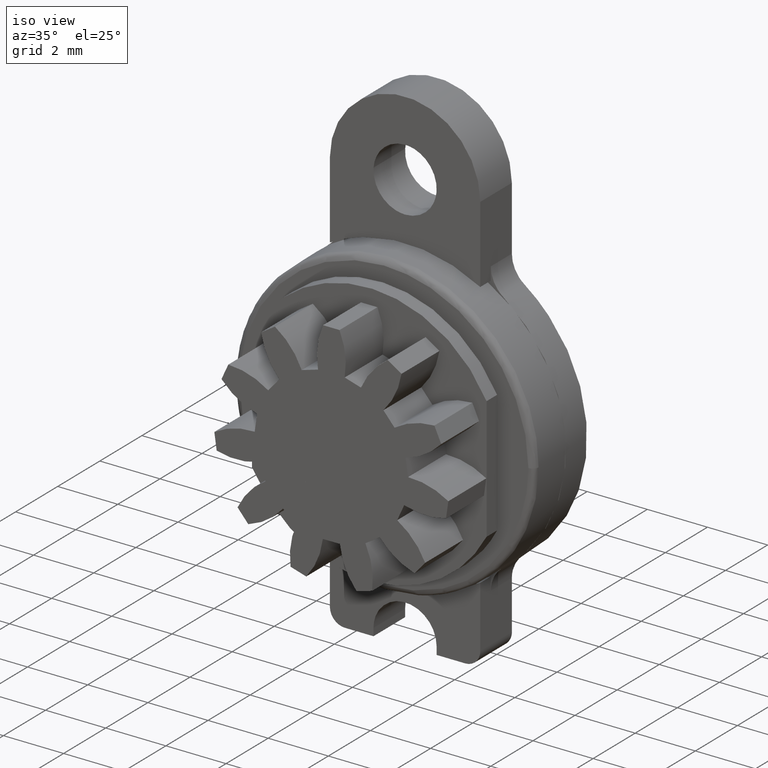
[diagram: clean part render]
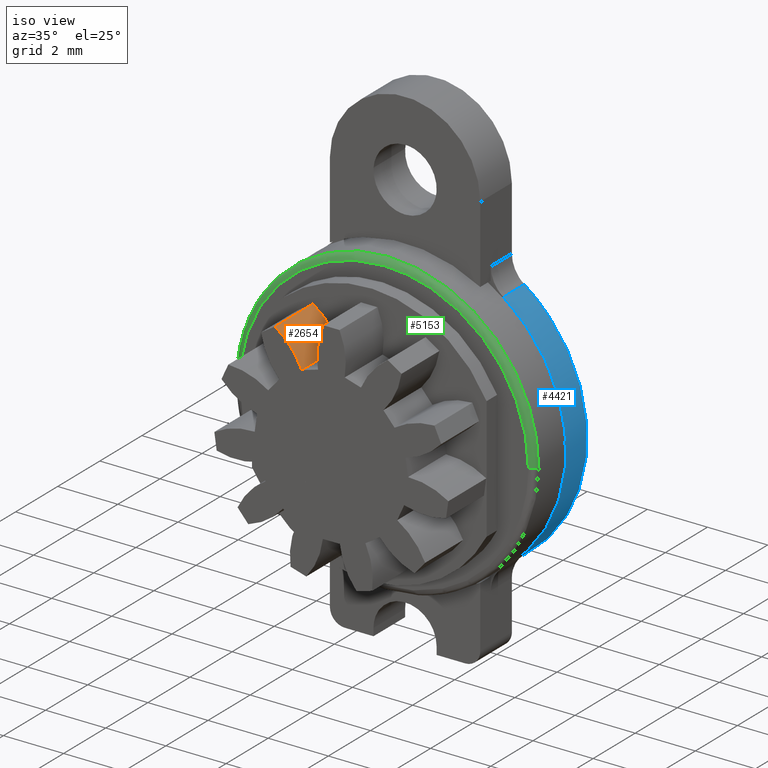
[diagram: same view with three faces highlighted in distinct colors, each labeled with its STEP entity id]
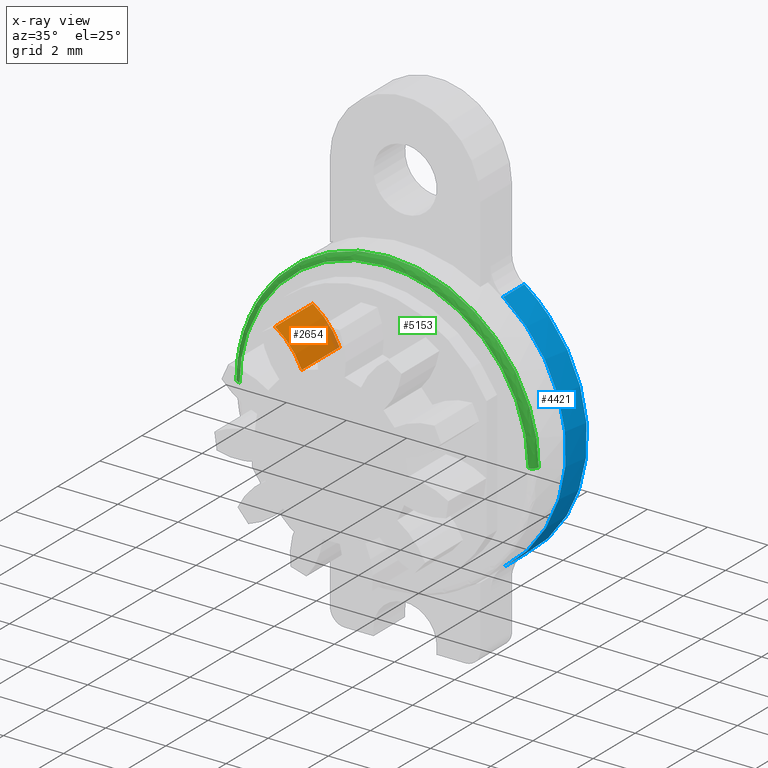
[diagram: x-ray of the same camera — body ghosted, the three highlighted faces saturated]
A machine part, iso view with three faces highlighted in distinct colors.
The next image is the same camera in x-ray (body ghosted, the three faces saturated) — at least one of them is partly hidden behind the body in this view.
Their STEP definitions:

[orange] entity #2654 — the highlighted face is a freeform B-spline surface patch.
#413=CARTESIAN_POINT('',(-0.985180069397917,-5.0,2.352003450435630));
#414=VERTEX_POINT('',#413);
#428=CARTESIAN_POINT('',(-1.874499756496710,-5.0,3.419978167020045));
#429=VERTEX_POINT('',#428);
#430=CARTESIAN_POINT('',(-0.985180069397921,-5.0,2.352003450435628));
#431=CARTESIAN_POINT('',(-1.265998256017910,-5.000000000000002,3.022424386050909));
#432=CARTESIAN_POINT('',(-1.874499756496711,-5.0,3.419978167020042));
#440=(BOUNDED_CURVE()B_SPLINE_CURVE(2,(#430,#431,#432),.UNSPECIFIED.,.F.,.U.)CURVE()GEOMETRIC_REPRESENTATION_ITEM()QUASI_UNIFORM_CURVE()RATIONAL_B_SPLINE_CURVE((1.0,0.956011273868735,1.0))REPRESENTATION_ITEM(''));
#441=EDGE_CURVE('',#414,#429,#440,.T.);
#2591=CARTESIAN_POINT('',(-1.874499756496710,-3.200000000000090,3.419978167020045));
#2592=VERTEX_POINT('',#2591);
#2608=CARTESIAN_POINT('',(-1.874499756496710,-5.0,3.419978167020045));
#2609=CARTESIAN_POINT('',(-1.874499756496710,-3.200000000000090,3.419978167020045));
#2610=QUASI_UNIFORM_CURVE('',1,(#2608,#2609),.UNSPECIFIED.,.F.,.U.);
#2611=EDGE_CURVE('',#429,#2592,#2610,.T.);
#2616=CARTESIAN_POINT('',(-0.977276451018096,-5.044999999999998,2.332900999438690));
#2617=CARTESIAN_POINT('',(-0.977276451018096,-3.153875000000092,2.332900999438690));
#2618=CARTESIAN_POINT('',(-1.271014033214468,-5.044999999999999,3.051704742115863));
#2619=CARTESIAN_POINT('',(-1.271014033214468,-3.153875000000092,3.051704742115863));
#2620=CARTESIAN_POINT('',(-1.933263066045181,-5.044999999999998,3.457151170384828));
#2621=CARTESIAN_POINT('',(-1.933263066045181,-3.153875000000093,3.457151170384828));
#2629=(BOUNDED_SURFACE()B_SPLINE_SURFACE(1,2,((#2616,#2618,#2620),(#2617,#2619,#2621)),.UNSPECIFIED.,.F.,.F.,.U.)B_SPLINE_SURFACE_WITH_KNOTS((2,2),(3,3),(0.0,1.0),(0.0,0.954452824884700),.UNSPECIFIED.)GEOMETRIC_REPRESENTATION_ITEM()RATIONAL_B_SPLINE_SURFACE(((1.0,0.948000050577026,0.995263098395290),(1.0,0.948000050577026,0.995263098395290)))REPRESENTATION_ITEM('')SURFACE());
#2630=CARTESIAN_POINT('',(-0.985180069397917,-3.200000000000090,2.352003450435630));
#2631=VERTEX_POINT('',#2630);
#2632=CARTESIAN_POINT('',(-0.985180069397921,-3.200000000000090,2.352003450435628));
#2633=CARTESIAN_POINT('',(-1.265998256017910,-3.200000000000091,3.022424386050909));
#2634=CARTESIAN_POINT('',(-1.874499756496711,-3.200000000000090,3.419978167020042));
#2642=(BOUNDED_CURVE()B_SPLINE_CURVE(2,(#2632,#2633,#2634),.UNSPECIFIED.,.F.,.U.)CURVE()GEOMETRIC_REPRESENTATION_ITEM()QUASI_UNIFORM_CURVE()RATIONAL_B_SPLINE_CURVE((1.0,0.956011273868735,1.0))REPRESENTATION_ITEM(''));
#2643=EDGE_CURVE('',#2631,#2592,#2642,.T.);
#2644=ORIENTED_EDGE('',*,*,#2643,.T.);
#2645=ORIENTED_EDGE('',*,*,#2611,.F.);
#2646=ORIENTED_EDGE('',*,*,#441,.F.);
#2647=CARTESIAN_POINT('',(-0.985180069397917,-5.0,2.352003450435630));
#2648=CARTESIAN_POINT('',(-0.985180069397917,-3.200000000000090,2.352003450435630));
#2649=QUASI_UNIFORM_CURVE('',1,(#2647,#2648),.UNSPECIFIED.,.F.,.U.);
#2650=EDGE_CURVE('',#414,#2631,#2649,.T.);
#2651=ORIENTED_EDGE('',*,*,#2650,.T.);
#2652=EDGE_LOOP('',(#2644,#2645,#2646,#2651));
#2653=FACE_OUTER_BOUND('',#2652,.T.);
#2654=ADVANCED_FACE('',(#2653),#2629,.T.);

[blue] entity #4421 — the highlighted face is a freeform B-spline surface patch.
#3961=CARTESIAN_POINT('',(2.916666666666655,0.0,4.061164310337071));
#3962=VERTEX_POINT('',#3961);
#3976=CARTESIAN_POINT('',(2.916666666666670,0.0,-4.061164310337071));
#3977=VERTEX_POINT('',#3976);
#3978=CARTESIAN_POINT('',(2.916666666666670,0.0,-4.061164310337071));
#3979=CARTESIAN_POINT('',(3.207456458630582,0.0,-3.852408353177686));
#3980=CARTESIAN_POINT('',(3.651333381854649,0.0,-3.454838441777005));
#3981=CARTESIAN_POINT('',(4.191970100041232,0.0,-2.762327982895506));
#3982=CARTESIAN_POINT('',(4.541039002110905,0.0,-2.134304670463381));
#3983=CARTESIAN_POINT('',(4.813180520902719,0.0,-1.417593927508520));
#3984=CARTESIAN_POINT('',(4.974293155356738,0.0,-0.691978332974171));
#3985=CARTESIAN_POINT('',(5.016893766348680,0.0,0.074442021849690));
#3986=CARTESIAN_POINT('',(4.953210019447623,0.0,0.789115415605036));
#3987=CARTESIAN_POINT('',(4.817409734811525,0.0,1.380035923574430));
#3988=CARTESIAN_POINT('',(4.631626982281780,0.0,1.904080887902194));
#3989=CARTESIAN_POINT('',(4.391034669015823,0.0,2.419227393563223));
#3990=CARTESIAN_POINT('',(4.034394751411957,0.0,2.984498044398972));
#3991=CARTESIAN_POINT('',(3.533604740069014,0.0,3.565959938711422));
#3992=CARTESIAN_POINT('',(3.137243521099101,0.0,3.902775265572735));
#3993=CARTESIAN_POINT('',(2.916666666666655,0.0,4.061164310337071));
#3994=B_SPLINE_CURVE_WITH_KNOTS('',3,(#3978,#3979,#3980,#3981,#3982,#3983,#3984,#3985,#3986,#3987,#3988,#3989,#3990,#3991,#3992,#3993),.UNSPECIFIED.,.F.,.U.,(4,1,1,1,1,1,1,1,1,1,1,1,1,4),(4.250369E-009,1.073871404255108,1.777445706548366,2.629141572410706,3.221626028827665,4.073321137400575,4.850944669464115,5.517486279744299,6.221062057539772,6.665425930231219,7.183849843118161,7.924453044452033,8.665061496751829,9.479719078071888),.UNSPECIFIED.);
#3995=EDGE_CURVE('',#3977,#3962,#3994,.T.);
#4186=CARTESIAN_POINT('',(2.916666666666670,-1.0,-4.061164310337065));
#4187=VERTEX_POINT('',#4186);
#4188=CARTESIAN_POINT('',(2.916666666666670,-1.0,-4.061164310337065));
#4189=CARTESIAN_POINT('',(2.916666666666670,0.0,-4.061164310337071));
#4190=QUASI_UNIFORM_CURVE('',1,(#4188,#4189),.UNSPECIFIED.,.F.,.U.);
#4191=EDGE_CURVE('',#4187,#3977,#4190,.T.);
#4359=CARTESIAN_POINT('',(2.916666666666655,-1.0,4.061164310337071));
#4360=VERTEX_POINT('',#4359);
#4374=CARTESIAN_POINT('',(2.916666666666655,-1.0,4.061164310337071));
#4375=CARTESIAN_POINT('',(2.916666666666655,0.0,4.061164310337071));
#4376=QUASI_UNIFORM_CURVE('',1,(#4374,#4375),.UNSPECIFIED.,.F.,.U.);
#4377=EDGE_CURVE('',#4360,#3962,#4376,.T.);
#4382=CARTESIAN_POINT('',(2.782541470120746,0.025000000000000,4.154210269962055));
#4383=CARTESIAN_POINT('',(2.782541470120746,-1.025625000000000,4.154210269962055));
#4384=CARTESIAN_POINT('',(9.303345415193549,0.025000000000000,-0.213504943417795));
#4385=CARTESIAN_POINT('',(9.303345415193549,-1.025625000000000,-0.213504943417795));
#4386=CARTESIAN_POINT('',(2.589040277330379,0.025000000000000,-4.277484125319575));
#4387=CARTESIAN_POINT('',(2.589040277330379,-1.025625000000000,-4.277484125319575));
#4395=(BOUNDED_SURFACE()B_SPLINE_SURFACE(1,2,((#4382,#4384,#4386),(#4383,#4385,#4387)),.UNSPECIFIED.,.F.,.F.,.U.)B_SPLINE_SURFACE_WITH_KNOTS((2,2),(3,3),(0.0,1.0),(0.0,10.972375732533351),.UNSPECIFIED.)GEOMETRIC_REPRESENTATION_ITEM()RATIONAL_B_SPLINE_SURFACE(((1.0,0.537299608346823,1.0),(1.0,0.537299608346823,1.0)))REPRESENTATION_ITEM('')SURFACE());
#4396=ORIENTED_EDGE('',*,*,#4377,.F.);
#4397=CARTESIAN_POINT('',(2.916666666666670,-1.0,-4.061164310337065));
#4398=CARTESIAN_POINT('',(3.167328580616664,-1.000000000000001,-3.881184411196988));
#4399=CARTESIAN_POINT('',(3.616436045070392,-0.999999999999997,-3.490858522766815));
#4400=CARTESIAN_POINT('',(4.121287602798405,-1.000000000000006,-2.863546564196753));
#4401=CARTESIAN_POINT('',(4.496124653630602,-0.999999999999997,-2.223097175600209));
#4402=CARTESIAN_POINT('',(4.742316107844779,-1.0,-1.628427952509644));
#4403=CARTESIAN_POINT('',(4.902956207168020,-1.0,-1.031543408755373));
#4404=CARTESIAN_POINT('',(4.981480952327410,-1.000000000000000,-0.518295335230647));
#4405=CARTESIAN_POINT('',(5.009010610099914,-1.0,0.012278972899370));
#4406=CARTESIAN_POINT('',(4.977630648895016,-1.0,0.617351599626761));
#4407=CARTESIAN_POINT('',(4.847473541340954,-1.0,1.298345273974296));
#4408=CARTESIAN_POINT('',(4.626536437020072,-1.0,1.928955498379841));
#4409=CARTESIAN_POINT('',(4.352630297091658,-0.999999999999998,2.482938949051043));
#4410=CARTESIAN_POINT('',(4.010159812948349,-1.000000000000013,3.012631987809102));
#4411=CARTESIAN_POINT('',(3.533606107546157,-0.999999999999978,3.565960647811775));
#4412=CARTESIAN_POINT('',(3.137243254226354,-1.000000000000004,3.902775095816954));
#4413=CARTESIAN_POINT('',(2.916666666666655,-1.0,4.061164310337071));
#4414=B_SPLINE_CURVE_WITH_KNOTS('',3,(#4397,#4398,#4399,#4400,#4401,#4402,#4403,#4404,#4405,#4406,#4407,#4408,#4409,#4410,#4411,#4412,#4413),.UNSPECIFIED.,.F.,.U.,(4,1,1,1,1,1,1,1,1,1,1,1,1,1,4),(4.246088E-009,0.925747841402710,1.777445706545133,2.406960239514987,3.147566404136663,3.703015773304080,4.258472441084297,4.702831335883138,5.295310283933149,6.072944879478225,6.776518025200307,7.294940940224413,7.924453044451291,8.665061496751424,9.479719078071916),.UNSPECIFIED.);
#4415=EDGE_CURVE('',#4187,#4360,#4414,.T.);
#4416=ORIENTED_EDGE('',*,*,#4415,.F.);
#4417=ORIENTED_EDGE('',*,*,#4191,.T.);
#4418=ORIENTED_EDGE('',*,*,#3995,.T.);
#4419=EDGE_LOOP('',(#4396,#4416,#4417,#4418));
#4420=FACE_OUTER_BOUND('',#4419,.T.);
#4421=ADVANCED_FACE('',(#4420),#4395,.T.);

[green] entity #5153 — the highlighted face is a freeform B-spline surface patch.
#4931=CARTESIAN_POINT('',(-5.000000000000005,-2.300000000162677,-4.425539E-016));
#4932=VERTEX_POINT('',#4931);
#4933=CARTESIAN_POINT('',(-3.686386764767198,-2.300000000086348,3.377950949991615));
#4934=VERTEX_POINT('',#4933);
#4935=CARTESIAN_POINT('',(-5.000000000000005,-2.300000000162677,-4.425539E-016));
#4936=CARTESIAN_POINT('',(-5.000000000000006,-2.300000000131040,1.944393590493176));
#4937=CARTESIAN_POINT('',(-3.686386764767200,-2.300000000086342,3.377950949991617));
#4945=(BOUNDED_CURVE()B_SPLINE_CURVE(2,(#4935,#4936,#4937),.UNSPECIFIED.,.F.,.U.)B_SPLINE_CURVE_WITH_KNOTS((3,3),(0.750000000000000,0.868415205476859),.UNSPECIFIED.)CURVE()GEOMETRIC_REPRESENTATION_ITEM()RATIONAL_B_SPLINE_CURVE((1.0,0.861267957245706,0.853959781283204))REPRESENTATION_ITEM(''));
#4946=EDGE_CURVE('',#4932,#4934,#4945,.T.);
#5011=CARTESIAN_POINT('',(-7.105427E-015,-2.299999999999970,4.999999999999999));
#5012=VERTEX_POINT('',#5011);
#5013=CARTESIAN_POINT('',(-3.686386764767200,-2.300000000086342,3.377950949991617));
#5014=CARTESIAN_POINT('',(-2.200052725762792,-2.300000000035767,4.999999999999999));
#5015=CARTESIAN_POINT('',(-7.105427E-015,-2.299999999999970,4.999999999999999));
#5023=(BOUNDED_CURVE()B_SPLINE_CURVE(2,(#5013,#5014,#5015),.UNSPECIFIED.,.F.,.U.)B_SPLINE_CURVE_WITH_KNOTS((3,3),(0.868415205476859,1.0),.UNSPECIFIED.)CURVE()GEOMETRIC_REPRESENTATION_ITEM()RATIONAL_B_SPLINE_CURVE((0.853959781283204,0.845838823940841,1.0))REPRESENTATION_ITEM(''));
#5024=EDGE_CURVE('',#4934,#5012,#5023,.T.);
#5026=CARTESIAN_POINT('',(4.999999999999992,-2.300000000162677,6.653662E-016));
#5027=VERTEX_POINT('',#5026);
#5028=CARTESIAN_POINT('',(-7.105427E-015,-2.299999999999970,4.999999999999999));
#5029=CARTESIAN_POINT('',(4.999999999999993,-2.300000000081324,4.999999999999998));
#5030=CARTESIAN_POINT('',(4.999999999999992,-2.300000000162677,6.653662E-016));
#5038=(BOUNDED_CURVE()B_SPLINE_CURVE(2,(#5028,#5029,#5030),.UNSPECIFIED.,.F.,.U.)B_SPLINE_CURVE_WITH_KNOTS((3,3),(0.0,0.250000000000000),.UNSPECIFIED.)CURVE()GEOMETRIC_REPRESENTATION_ITEM()RATIONAL_B_SPLINE_CURVE((1.0,0.707106781186548,1.0))REPRESENTATION_ITEM(''));
#5039=EDGE_CURVE('',#5012,#5027,#5038,.T.);
#5061=CARTESIAN_POINT('',(-4.786129884907074,-2.499518470090608,-0.133804577751512));
#5062=CARTESIAN_POINT('',(-4.786129884907074,-2.499518470090608,-0.067291911056559));
#5063=CARTESIAN_POINT('',(-4.786129884907074,-2.499518470090608,4.786129884907065));
#5064=CARTESIAN_POINT('',(-8.277652E-015,-2.499518470090608,4.786129884907067));
#5065=CARTESIAN_POINT('',(4.786129884907057,-2.499518470090608,4.786129884907067));
#5066=CARTESIAN_POINT('',(4.786129884907060,-2.499518470090608,-0.067291911056557));
#5067=CARTESIAN_POINT('',(4.786129884907059,-2.499518470090608,-0.133804577751510));
#5068=CARTESIAN_POINT('',(-5.015547854384000,-2.515467137096656,-0.140218355745977));
#5069=CARTESIAN_POINT('',(-5.015547854384000,-2.515467137096656,-0.070517476172437));
#5070=CARTESIAN_POINT('',(-5.015547854383998,-2.515467137096656,5.015547854383988));
#5071=CARTESIAN_POINT('',(-8.333842E-015,-2.515467137096655,5.015547854383992));
#5072=CARTESIAN_POINT('',(5.015547854383985,-2.515467137096656,5.015547854383991));
#5073=CARTESIAN_POINT('',(5.015547854383985,-2.515467137096656,-0.070517476172435));
#5074=CARTESIAN_POINT('',(5.015547854383984,-2.515467137096656,-0.140218355745975));
#5075=CARTESIAN_POINT('',(-4.999513261111857,-2.286055157207239,-0.139770080827872));
#5076=CARTESIAN_POINT('',(-4.999513261111856,-2.286055157207238,-0.070292033392938));
#5077=CARTESIAN_POINT('',(-4.999513261111857,-2.286055157207238,4.999513261111845));
#5078=CARTESIAN_POINT('',(-8.329914E-015,-2.286055157207239,4.999513261111850));
#5079=CARTESIAN_POINT('',(4.999513261111842,-2.286055157207238,4.999513261111851));
#5080=CARTESIAN_POINT('',(4.999513261111843,-2.286055157207238,-0.070292033392936));
#5081=CARTESIAN_POINT('',(4.999513261111843,-2.286055157207239,-0.139770080827871));
#5089=(BOUNDED_SURFACE()B_SPLINE_SURFACE(2,2,((#5061,#5068,#5075),(#5062,#5069,#5076),(#5063,#5070,#5077),(#5064,#5071,#5078),(#5065,#5072,#5079),(#5066,#5073,#5080),(#5067,#5074,#5081)),.UNSPECIFIED.,.F.,.F.,.U.)B_SPLINE_SURFACE_WITH_KNOTS((3,1,2,1,3),(3,3),(0.0,0.165669295841334,8.449134087908009,16.732598879974692,16.898268175816021),(0.0,0.364545435399405),.UNSPECIFIED.)GEOMETRIC_REPRESENTATION_ITEM()RATIONAL_B_SPLINE_SURFACE(((0.926697838400259,0.606435486919036,0.921564728292852),(0.921332230155912,0.602924207283492,0.916228840909793),(0.647686209694202,0.423848945870745,0.644098584373797),(0.915966621911565,0.599412927647948,0.910892953526734),(0.647686209694202,0.423848945870745,0.644098584373797),(0.921332230155912,0.602924207283492,0.916228840909793),(0.926697838400259,0.606435486919036,0.921564728292852)))REPRESENTATION_ITEM('')SURFACE());
#5090=ORIENTED_EDGE('',*,*,#5024,.F.);
#5091=ORIENTED_EDGE('',*,*,#4946,.F.);
#5092=CARTESIAN_POINT('',(-4.800000000157622,-2.499999999999985,-4.426226E-016));
#5093=VERTEX_POINT('',#5092);
#5094=CARTESIAN_POINT('',(-4.800000000157622,-2.499999999999970,-8.852452E-016));
#5095=CARTESIAN_POINT('',(-4.999999999837297,-2.499999999842354,-8.742504E-016));
#5096=CARTESIAN_POINT('',(-5.000000000000005,-2.300000000162676,-8.851079E-016));
#5104=(BOUNDED_CURVE()B_SPLINE_CURVE(2,(#5094,#5095,#5096),.UNSPECIFIED.,.F.,.U.)B_SPLINE_CURVE_WITH_KNOTS((3,3),(-1.736413120256533,-0.276558718852839),.UNSPECIFIED.)CURVE()GEOMETRIC_REPRESENTATION_ITEM()RATIONAL_B_SPLINE_CURVE((0.888510408769929,0.626638727531525,0.883897566843454))REPRESENTATION_ITEM(''));
#5105=EDGE_CURVE('',#5093,#4932,#5104,.T.);
#5106=ORIENTED_EDGE('',*,*,#5105,.F.);
#5107=CARTESIAN_POINT('',(-7.105427E-015,-2.499999999999970,4.800000000000000));
#5108=VERTEX_POINT('',#5107);
#5109=CARTESIAN_POINT('',(-7.105427E-015,-2.499999999999970,4.800000000000000));
#5110=CARTESIAN_POINT('',(-4.800000000078817,-2.499999999999993,4.800000000000001));
#5111=CARTESIAN_POINT('',(-4.800000000157622,-2.499999999999985,-4.426226E-016));
#5119=(BOUNDED_CURVE()B_SPLINE_CURVE(2,(#5109,#5110,#5111),.UNSPECIFIED.,.F.,.U.)B_SPLINE_CURVE_WITH_KNOTS((3,3),(0.0,0.250000000000000),.UNSPECIFIED.)CURVE()GEOMETRIC_REPRESENTATION_ITEM()RATIONAL_B_SPLINE_CURVE((1.0,0.707106781186547,1.0))REPRESENTATION_ITEM(''));
#5120=EDGE_CURVE('',#5108,#5093,#5119,.T.);
#5121=ORIENTED_EDGE('',*,*,#5120,.F.);
#5122=CARTESIAN_POINT('',(4.800000000157608,-2.499999999999985,2.213113E-016));
#5123=VERTEX_POINT('',#5122);
#5124=CARTESIAN_POINT('',(4.800000000157608,-2.499999999999985,2.213113E-016));
#5125=CARTESIAN_POINT('',(4.800000000078800,-2.499999999999978,4.800000000000001));
#5126=CARTESIAN_POINT('',(-7.105427E-015,-2.499999999999970,4.800000000000000));
#5134=(BOUNDED_CURVE()B_SPLINE_CURVE(2,(#5124,#5125,#5126),.UNSPECIFIED.,.F.,.U.)B_SPLINE_CURVE_WITH_KNOTS((3,3),(0.750000000000000,1.0),.UNSPECIFIED.)CURVE()GEOMETRIC_REPRESENTATION_ITEM()RATIONAL_B_SPLINE_CURVE((1.0,0.707106781186547,1.0))REPRESENTATION_ITEM(''));
#5135=EDGE_CURVE('',#5123,#5108,#5134,.T.);
#5136=ORIENTED_EDGE('',*,*,#5135,.F.);
#5137=CARTESIAN_POINT('',(4.800000000157607,-2.499999999999985,2.213113E-016));
#5138=CARTESIAN_POINT('',(4.999999999837285,-2.499999999842352,4.371252E-016));
#5139=CARTESIAN_POINT('',(4.999999999999990,-2.300000000162676,4.425539E-016));
#5147=(BOUNDED_CURVE()B_SPLINE_CURVE(2,(#5137,#5138,#5139),.UNSPECIFIED.,.F.,.U.)B_SPLINE_CURVE_WITH_KNOTS((3,3),(-1.736413120256528,-0.276558718852839),.UNSPECIFIED.)CURVE()GEOMETRIC_REPRESENTATION_ITEM()RATIONAL_B_SPLINE_CURVE((0.888510408769927,0.626638727531526,0.883897566843454))REPRESENTATION_ITEM(''));
#5148=EDGE_CURVE('',#5123,#5027,#5147,.T.);
#5149=ORIENTED_EDGE('',*,*,#5148,.T.);
#5150=ORIENTED_EDGE('',*,*,#5039,.F.);
#5151=EDGE_LOOP('',(#5090,#5091,#5106,#5121,#5136,#5149,#5150));
#5152=FACE_OUTER_BOUND('',#5151,.T.);
#5153=ADVANCED_FACE('',(#5152),#5089,.T.);